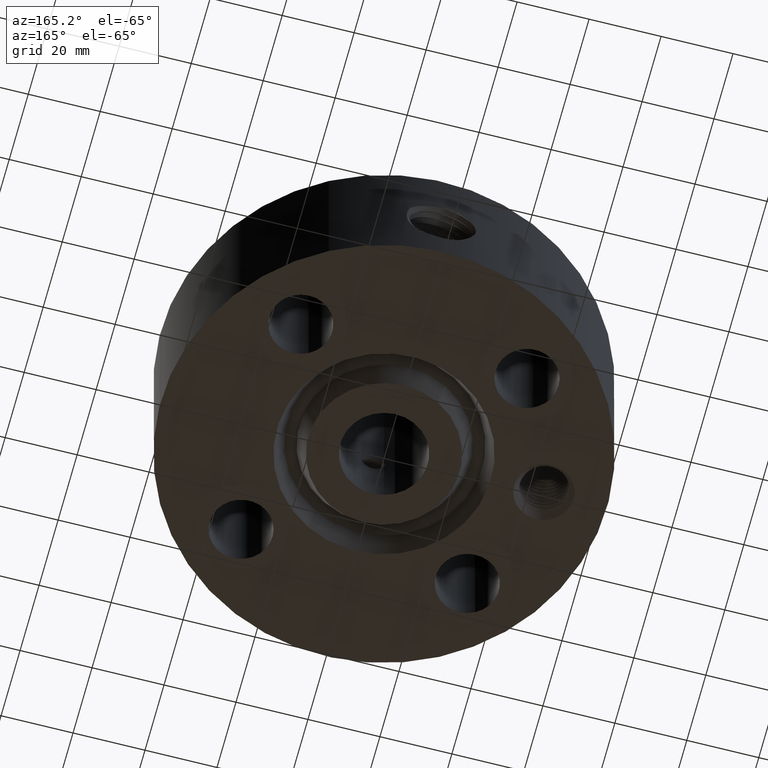
[diagram: clean part render]
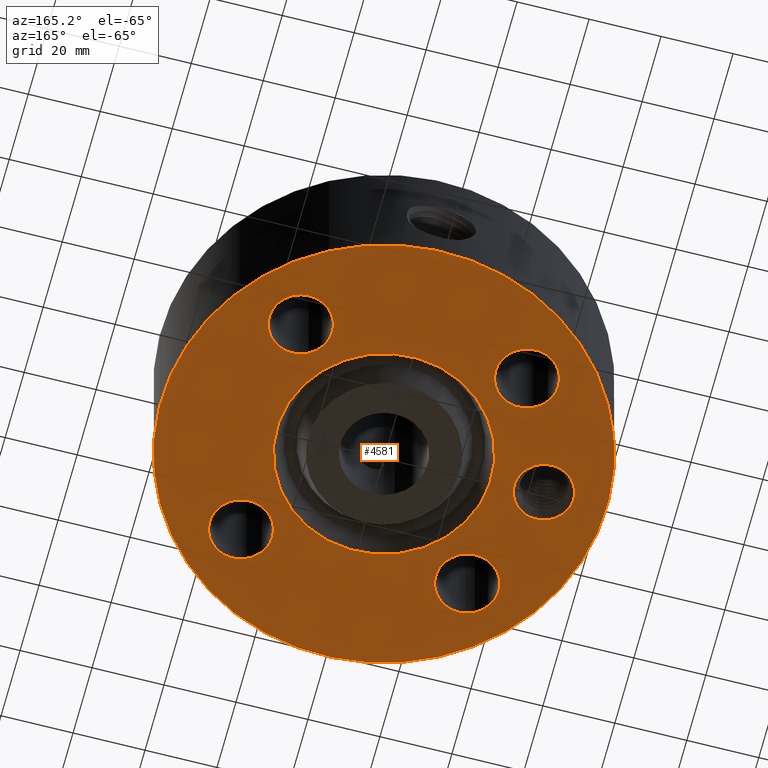
[diagram: same view with one face highlighted and labeled with its STEP entity id]
A machine part, auxiliary view. The second image highlights one B-rep face of the part: STEP entity #4581.
In plain terms, the highlighted planar face has unit normal (0, 0, -1).
Its self-contained STEP definition (entity closure, byte-faithful):
#598=AXIS2_PLACEMENT_3D('Plane Axis2P3D',#595,#596,#597) ;
#3368=AXIS2_PLACEMENT_3D('Circle Axis2P3D',#3366,#3367,$) ;
#3394=AXIS2_PLACEMENT_3D('Circle Axis2P3D',#3392,#3393,$) ;
#3667=AXIS2_PLACEMENT_3D('Circle Axis2P3D',#3665,#3666,$) ;
#3811=AXIS2_PLACEMENT_3D('Circle Axis2P3D',#3809,#3810,$) ;
#4086=AXIS2_PLACEMENT_3D('Circle Axis2P3D',#4084,#4085,$) ;
#4105=AXIS2_PLACEMENT_3D('Circle Axis2P3D',#4103,#4104,$) ;
#4129=AXIS2_PLACEMENT_3D('Circle Axis2P3D',#4127,#4128,$) ;
#4148=AXIS2_PLACEMENT_3D('Circle Axis2P3D',#4146,#4147,$) ;
#4172=AXIS2_PLACEMENT_3D('Circle Axis2P3D',#4170,#4171,$) ;
#4191=AXIS2_PLACEMENT_3D('Circle Axis2P3D',#4189,#4190,$) ;
#4215=AXIS2_PLACEMENT_3D('Circle Axis2P3D',#4213,#4214,$) ;
#4234=AXIS2_PLACEMENT_3D('Circle Axis2P3D',#4232,#4233,$) ;
#4545=AXIS2_PLACEMENT_3D('Circle Axis2P3D',#4543,#4544,$) ;
#4554=AXIS2_PLACEMENT_3D('Circle Axis2P3D',#4552,#4553,$) ;
#595=CARTESIAN_POINT('Axis2P3D Location',(0.,0.478500000002,0.)) ;
#3366=CARTESIAN_POINT('Axis2P3D Location',(0.,0.,0.)) ;
#3370=CARTESIAN_POINT('Vertex',(-0.561886731246,1.02852676254,0.)) ;
#3372=CARTESIAN_POINT('Vertex',(0.561886731246,-1.02852676254,3.49676543189E-017)) ;
#3392=CARTESIAN_POINT('Axis2P3D Location',(0.,0.,0.)) ;
#3665=CARTESIAN_POINT('Axis2P3D Location',(0.,0.,2.79741234551E-016)) ;
#3669=CARTESIAN_POINT('Vertex',(-1.1697983142,-2.14130145102,2.79741234551E-016)) ;
#3671=CARTESIAN_POINT('Vertex',(1.1697983142,2.14130145102,2.79741234551E-016)) ;
#3809=CARTESIAN_POINT('Axis2P3D Location',(0.,0.,2.79741234551E-016)) ;
#4081=CARTESIAN_POINT('Vertex',(1.54020285093,-1.4028386779,0.)) ;
#4084=CARTESIAN_POINT('Axis2P3D Location',(1.23743686708,-1.23743686708,0.)) ;
#4088=CARTESIAN_POINT('Vertex',(0.934670883228,-1.07203505626,0.)) ;
#4103=CARTESIAN_POINT('Axis2P3D Location',(1.23743686708,-1.23743686708,0.)) ;
#4124=CARTESIAN_POINT('Vertex',(-1.07203505626,-0.934670883228,0.)) ;
#4127=CARTESIAN_POINT('Axis2P3D Location',(-1.23743686708,-1.23743686708,0.)) ;
#4131=CARTESIAN_POINT('Vertex',(-1.4028386779,-1.54020285093,0.)) ;
#4146=CARTESIAN_POINT('Axis2P3D Location',(-1.23743686708,-1.23743686708,0.)) ;
#4167=CARTESIAN_POINT('Vertex',(-0.934670883228,1.07203505626,0.)) ;
#4170=CARTESIAN_POINT('Axis2P3D Location',(-1.23743686708,1.23743686708,0.)) ;
#4174=CARTESIAN_POINT('Vertex',(-1.54020285093,1.4028386779,0.)) ;
#4189=CARTESIAN_POINT('Axis2P3D Location',(-1.23743686708,1.23743686708,0.)) ;
#4210=CARTESIAN_POINT('Vertex',(1.07203505626,0.934670883228,0.)) ;
#4213=CARTESIAN_POINT('Axis2P3D Location',(1.23743686708,1.23743686708,0.)) ;
#4217=CARTESIAN_POINT('Vertex',(1.4028386779,1.54020285093,0.)) ;
#4232=CARTESIAN_POINT('Axis2P3D Location',(1.23743686708,1.23743686708,0.)) ;
#4543=CARTESIAN_POINT('Axis2P3D Location',(-1.75000000001,0.,0.)) ;
#4547=CARTESIAN_POINT('Vertex',(-1.46423717829,-0.156112941009,0.)) ;
#4549=CARTESIAN_POINT('Vertex',(-2.03576282172,0.156112941009,0.)) ;
#4552=CARTESIAN_POINT('Axis2P3D Location',(-1.75000000001,0.,0.)) ;
#596=DIRECTION('Axis2P3D Direction',(0.,0.,-0.0393700787402)) ;
#597=DIRECTION('Axis2P3D XDirection',(0.0393700787402,0.,0.)) ;
#3367=DIRECTION('Axis2P3D Direction',(0.,0.,-0.0393700787402)) ;
#3393=DIRECTION('Axis2P3D Direction',(0.,0.,-0.0393700787402)) ;
#3666=DIRECTION('Axis2P3D Direction',(0.,0.,-0.0393700787402)) ;
#3810=DIRECTION('Axis2P3D Direction',(0.,0.,-0.0393700787402)) ;
#4085=DIRECTION('Axis2P3D Direction',(0.,-0.,-0.0393700787402)) ;
#4104=DIRECTION('Axis2P3D Direction',(0.,-0.,-0.0393700787402)) ;
#4128=DIRECTION('Axis2P3D Direction',(0.,-0.,-0.0393700787402)) ;
#4147=DIRECTION('Axis2P3D Direction',(0.,-0.,-0.0393700787402)) ;
#4171=DIRECTION('Axis2P3D Direction',(-0.,0.,-0.0393700787402)) ;
#4190=DIRECTION('Axis2P3D Direction',(-0.,0.,-0.0393700787402)) ;
#4214=DIRECTION('Axis2P3D Direction',(0.,0.,-0.0393700787402)) ;
#4233=DIRECTION('Axis2P3D Direction',(0.,0.,-0.0393700787402)) ;
#4544=DIRECTION('Axis2P3D Direction',(0.,0.,-0.0393700787402)) ;
#4553=DIRECTION('Axis2P3D Direction',(0.,0.,-0.0393700787402)) ;
#4540=ORIENTED_EDGE('',*,*,#3673,.T.) ;
#4541=ORIENTED_EDGE('',*,*,#3813,.T.) ;
#4558=ORIENTED_EDGE('',*,*,#4551,.F.) ;
#4559=ORIENTED_EDGE('',*,*,#4556,.F.) ;
#4562=ORIENTED_EDGE('',*,*,#4090,.F.) ;
#4563=ORIENTED_EDGE('',*,*,#4107,.F.) ;
#4566=ORIENTED_EDGE('',*,*,#4133,.F.) ;
#4567=ORIENTED_EDGE('',*,*,#4150,.F.) ;
#4570=ORIENTED_EDGE('',*,*,#4176,.F.) ;
#4571=ORIENTED_EDGE('',*,*,#4193,.F.) ;
#4574=ORIENTED_EDGE('',*,*,#4219,.F.) ;
#4575=ORIENTED_EDGE('',*,*,#4236,.F.) ;
#4578=ORIENTED_EDGE('',*,*,#3396,.F.) ;
#4579=ORIENTED_EDGE('',*,*,#3374,.F.) ;
#4560=FACE_BOUND('',#4557,.T.) ;
#4564=FACE_BOUND('',#4561,.T.) ;
#4568=FACE_BOUND('',#4565,.T.) ;
#4572=FACE_BOUND('',#4569,.T.) ;
#4576=FACE_BOUND('',#4573,.T.) ;
#4580=FACE_BOUND('',#4577,.T.) ;
#4581=ADVANCED_FACE('PartBody',(#4542,#4560,#4564,#4568,#4572,#4576,#4580),#599,.T.) ;
#3369=CIRCLE('generated circle',#3368,1.172) ;
#3395=CIRCLE('generated circle',#3394,1.172) ;
#3668=CIRCLE('generated circle',#3667,2.44000000001) ;
#3812=CIRCLE('generated circle',#3811,2.44000000001) ;
#4087=CIRCLE('generated circle',#4086,0.345000000001) ;
#4106=CIRCLE('generated circle',#4105,0.345000000001) ;
#4130=CIRCLE('generated circle',#4129,0.345000000001) ;
#4149=CIRCLE('generated circle',#4148,0.345000000001) ;
#4173=CIRCLE('generated circle',#4172,0.345000000001) ;
#4192=CIRCLE('generated circle',#4191,0.345000000001) ;
#4216=CIRCLE('generated circle',#4215,0.345000000001) ;
#4235=CIRCLE('generated circle',#4234,0.345000000001) ;
#4546=CIRCLE('generated circle',#4545,0.325625000001) ;
#4555=CIRCLE('generated circle',#4554,0.325625000001) ;
#3374=EDGE_CURVE('',#3371,#3373,#3369,.T.) ;
#3396=EDGE_CURVE('',#3373,#3371,#3395,.T.) ;
#3673=EDGE_CURVE('',#3670,#3672,#3668,.T.) ;
#3813=EDGE_CURVE('',#3672,#3670,#3812,.T.) ;
#4090=EDGE_CURVE('',#4082,#4089,#4087,.T.) ;
#4107=EDGE_CURVE('',#4089,#4082,#4106,.T.) ;
#4133=EDGE_CURVE('',#4125,#4132,#4130,.T.) ;
#4150=EDGE_CURVE('',#4132,#4125,#4149,.T.) ;
#4176=EDGE_CURVE('',#4168,#4175,#4173,.T.) ;
#4193=EDGE_CURVE('',#4175,#4168,#4192,.T.) ;
#4219=EDGE_CURVE('',#4211,#4218,#4216,.T.) ;
#4236=EDGE_CURVE('',#4218,#4211,#4235,.T.) ;
#4551=EDGE_CURVE('',#4548,#4550,#4546,.T.) ;
#4556=EDGE_CURVE('',#4550,#4548,#4555,.T.) ;
#4539=EDGE_LOOP('',(#4540,#4541)) ;
#4557=EDGE_LOOP('',(#4558,#4559)) ;
#4561=EDGE_LOOP('',(#4562,#4563)) ;
#4565=EDGE_LOOP('',(#4566,#4567)) ;
#4569=EDGE_LOOP('',(#4570,#4571)) ;
#4573=EDGE_LOOP('',(#4574,#4575)) ;
#4577=EDGE_LOOP('',(#4578,#4579)) ;
#4542=FACE_OUTER_BOUND('',#4539,.T.) ;
#599=PLANE('',#598) ;
#3371=VERTEX_POINT('',#3370) ;
#3373=VERTEX_POINT('',#3372) ;
#3670=VERTEX_POINT('',#3669) ;
#3672=VERTEX_POINT('',#3671) ;
#4082=VERTEX_POINT('',#4081) ;
#4089=VERTEX_POINT('',#4088) ;
#4125=VERTEX_POINT('',#4124) ;
#4132=VERTEX_POINT('',#4131) ;
#4168=VERTEX_POINT('',#4167) ;
#4175=VERTEX_POINT('',#4174) ;
#4211=VERTEX_POINT('',#4210) ;
#4218=VERTEX_POINT('',#4217) ;
#4548=VERTEX_POINT('',#4547) ;
#4550=VERTEX_POINT('',#4549) ;